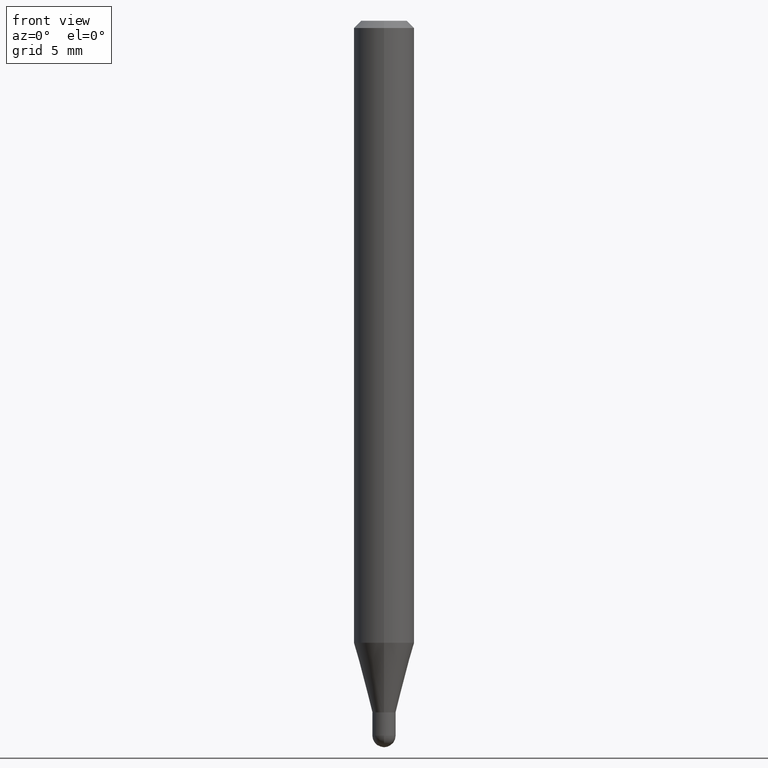
[diagram: clean part render]
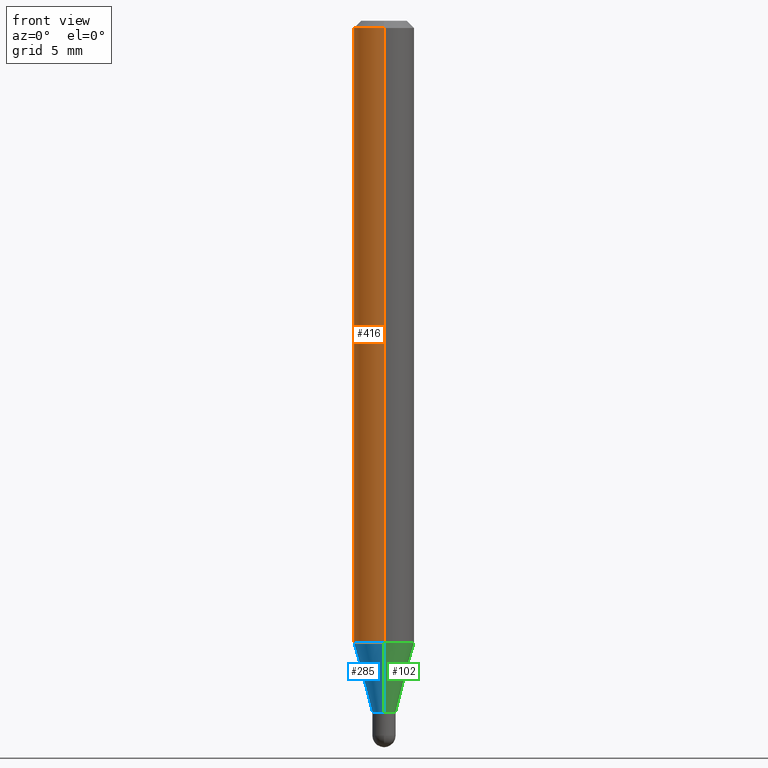
[diagram: same view with three faces highlighted in distinct colors, each labeled with its STEP entity id]
A machine part, front view with three faces highlighted in distinct colors.
Their STEP definitions:

[orange] entity #416 — the highlighted cylindrical surface (edge-blend (fillet) strip) has radius 1.5875 mm, axis along (-0, 0, 1).
#5 = DIRECTION ( 'NONE',  ( -2.445477922640170503E-29, 3.491468283560659998E-15, 1.000000000000000000 ) ) ;
#8 = CARTESIAN_POINT ( 'NONE',  ( -4.364351673553916201E-16, -0.06250000000000000000, 2.182167677225412499E-16 ) ) ;
#15 = VECTOR ( 'NONE', #5, 39.37007874015748143 ) ;
#20 = DIRECTION ( 'NONE',  ( -2.445477922640170503E-29, 3.491468283560659998E-15, 1.000000000000000000 ) ) ;
#33 = ORIENTED_EDGE ( 'NONE', *, *, #86, .F. ) ;
#49 = LINE ( 'NONE', #8, #15 ) ;
#67 = CARTESIAN_POINT ( 'NONE',  ( 4.440892098500625669E-16, 0.06250000000000000000, -2.182167677225412499E-16 ) ) ;
#68 = EDGE_LOOP ( 'NONE', ( #270, #476, #489, #33 ) ) ;
#71 = CYLINDRICAL_SURFACE ( 'NONE', #122, 0.06250000000000000000 ) ;
#86 = EDGE_CURVE ( 'NONE', #265, #317, #318, .T. ) ;
#90 = DIRECTION ( 'NONE',  ( -2.445477922640170783E-29, 3.491468283560660393E-15, 1.000000000000000000 ) ) ;
#98 = AXIS2_PLACEMENT_3D ( 'NONE', #137, #295, #453 ) ;
#108 = LINE ( 'NONE', #67, #384 ) ;
#122 = AXIS2_PLACEMENT_3D ( 'NONE', #387, #90, #288 ) ;
#123 = CARTESIAN_POINT ( 'NONE',  ( -4.364351673553604601E-16, -0.06250000000000449640, -1.284316043908603877 ) ) ;
#137 = CARTESIAN_POINT ( 'NONE',  ( 3.668216883960272272E-31, -5.237202425341013244E-17, -0.01500000000000006710 ) ) ;
#147 = EDGE_CURVE ( 'NONE', #443, #265, #108, .T. ) ;
#175 = CARTESIAN_POINT ( 'NONE',  ( 4.440892098500937762E-16, 0.06249999999999550360, -1.284316043908604321 ) ) ;
#225 = EDGE_CURVE ( 'NONE', #443, #403, #319, .T. ) ;
#263 = DIRECTION ( 'NONE',  ( -2.445477922640170783E-29, 3.491468283560660393E-15, 1.000000000000000000 ) ) ;
#265 = VERTEX_POINT ( 'NONE', #502 ) ;
#270 = ORIENTED_EDGE ( 'NONE', *, *, #147, .F. ) ;
#288 = DIRECTION ( 'NONE',  ( -6.982962677686265922E-15, -1.000000000000000000, 3.491468283560659998E-15 ) ) ;
#295 = DIRECTION ( 'NONE',  ( -2.445477922640170783E-29, 3.491468283560660393E-15, 1.000000000000000000 ) ) ;
#317 = VERTEX_POINT ( 'NONE', #430 ) ;
#318 = CIRCLE ( 'NONE', #98, 0.06250000000000000000 ) ;
#319 = CIRCLE ( 'NONE', #343, 0.06250000000000000000 ) ;
#343 = AXIS2_PLACEMENT_3D ( 'NONE', #382, #263, #423 ) ;
#382 = CARTESIAN_POINT ( 'NONE',  ( 3.140766531071055068E-29, -4.484148733374991041E-15, -1.284316043908604099 ) ) ;
#384 = VECTOR ( 'NONE', #20, 39.37007874015748143 ) ;
#387 = CARTESIAN_POINT ( 'NONE',  ( 0.000000000000000000, 0.000000000000000000, 0.000000000000000000 ) ) ;
#403 = VERTEX_POINT ( 'NONE', #123 ) ;
#416 = ADVANCED_FACE ( 'NONE', ( #427 ), #71, .T. ) ;
#423 = DIRECTION ( 'NONE',  ( -6.982962677686265922E-15, -1.000000000000000000, 4.370956789862821150E-15 ) ) ;
#427 = FACE_OUTER_BOUND ( 'NONE', #68, .T. ) ;
#430 = CARTESIAN_POINT ( 'NONE',  ( -4.364351673553912750E-16, -0.06250000000000005551, -0.01499999999999984852 ) ) ;
#443 = VERTEX_POINT ( 'NONE', #175 ) ;
#453 = DIRECTION ( 'NONE',  ( -6.982962677686265922E-15, -1.000000000000000000, 3.483106191921935554E-15 ) ) ;
#476 = ORIENTED_EDGE ( 'NONE', *, *, #225, .T. ) ;
#489 = ORIENTED_EDGE ( 'NONE', *, *, #496, .T. ) ;
#496 = EDGE_CURVE ( 'NONE', #403, #317, #49, .T. ) ;
#502 = CARTESIAN_POINT ( 'NONE',  ( 4.440892098500941706E-16, 0.06249999999999995143, -0.01500000000000028394 ) ) ;

[blue] entity #285 — the highlighted conical surface has half-angle 15 deg.
#34 = CARTESIAN_POINT ( 'NONE',  ( -1.675911042644368064E-16, -0.02400000000000517691, -1.428000000000000158 ) ) ;
#46 = CARTESIAN_POINT ( 'NONE',  ( 1.705302565824602865E-16, 0.02399999999999520572, -1.428000000000000158 ) ) ;
#48 = VERTEX_POINT ( 'NONE', #252 ) ;
#95 = EDGE_CURVE ( 'NONE', #48, #443, #100, .T. ) ;
#100 = LINE ( 'NONE', #46, #229 ) ;
#123 = CARTESIAN_POINT ( 'NONE',  ( -4.364351673553604601E-16, -0.06250000000000449640, -1.284316043908603877 ) ) ;
#124 = ORIENTED_EDGE ( 'NONE', *, *, #225, .F. ) ;
#138 = VECTOR ( 'NONE', #475, 39.37007874015748143 ) ;
#146 = CONICAL_SURFACE ( 'NONE', #482, 0.02400000000000019132, 0.2617993877991580676 ) ;
#160 = LINE ( 'NONE', #34, #138 ) ;
#175 = CARTESIAN_POINT ( 'NONE',  ( 4.440892098500937762E-16, 0.06249999999999550360, -1.284316043908604321 ) ) ;
#207 = DIRECTION ( 'NONE',  ( 1.839019923739653958E-15, 0.2588190451025325078, 0.9659258262890650926 ) ) ;
#225 = EDGE_CURVE ( 'NONE', #443, #403, #319, .T. ) ;
#229 = VECTOR ( 'NONE', #207, 39.37007874015748143 ) ;
#234 = DIRECTION ( 'NONE',  ( -2.445477922640170783E-29, 3.491468283560660393E-15, 1.000000000000000000 ) ) ;
#252 = CARTESIAN_POINT ( 'NONE',  ( 3.073097332162772285E-16, 0.02399999999999520572, -1.428000000000000158 ) ) ;
#263 = DIRECTION ( 'NONE',  ( -2.445477922640170783E-29, 3.491468283560660393E-15, 1.000000000000000000 ) ) ;
#285 = ADVANCED_FACE ( 'NONE', ( #356 ), #146, .T. ) ;
#312 = DIRECTION ( 'NONE',  ( -6.982962677686265922E-15, -1.000000000000000000, 0.000000000000000000 ) ) ;
#314 = DIRECTION ( 'NONE',  ( -6.982962677686265922E-15, -1.000000000000000000, 0.000000000000000000 ) ) ;
#319 = CIRCLE ( 'NONE', #343, 0.06250000000000000000 ) ;
#320 = CARTESIAN_POINT ( 'NONE',  ( 3.492142473530164178E-29, -4.985816708924623265E-15, -1.428000000000000158 ) ) ;
#323 = EDGE_CURVE ( 'NONE', #48, #481, #445, .T. ) ;
#326 = CARTESIAN_POINT ( 'NONE',  ( -1.675911042644368064E-16, -0.02400000000000517691, -1.428000000000000158 ) ) ;
#337 = EDGE_CURVE ( 'NONE', #481, #403, #160, .T. ) ;
#339 = ORIENTED_EDGE ( 'NONE', *, *, #95, .F. ) ;
#343 = AXIS2_PLACEMENT_3D ( 'NONE', #382, #263, #423 ) ;
#356 = FACE_OUTER_BOUND ( 'NONE', #503, .T. ) ;
#382 = CARTESIAN_POINT ( 'NONE',  ( 3.140766531071055068E-29, -4.484148733374991041E-15, -1.284316043908604099 ) ) ;
#389 = DIRECTION ( 'NONE',  ( -2.445477922640170783E-29, 3.491468283560660393E-15, 1.000000000000000000 ) ) ;
#403 = VERTEX_POINT ( 'NONE', #123 ) ;
#423 = DIRECTION ( 'NONE',  ( -6.982962677686265922E-15, -1.000000000000000000, 4.370956789862821150E-15 ) ) ;
#436 = AXIS2_PLACEMENT_3D ( 'NONE', #506, #389, #314 ) ;
#443 = VERTEX_POINT ( 'NONE', #175 ) ;
#445 = CIRCLE ( 'NONE', #436, 0.02400000000000019132 ) ;
#450 = ORIENTED_EDGE ( 'NONE', *, *, #323, .T. ) ;
#470 = ORIENTED_EDGE ( 'NONE', *, *, #337, .T. ) ;
#475 = DIRECTION ( 'NONE',  ( -1.807323732225382993E-15, -0.2588190451025257355, 0.9659258262890669799 ) ) ;
#481 = VERTEX_POINT ( 'NONE', #326 ) ;
#482 = AXIS2_PLACEMENT_3D ( 'NONE', #320, #234, #312 ) ;
#503 = EDGE_LOOP ( 'NONE', ( #339, #450, #470, #124 ) ) ;
#506 = CARTESIAN_POINT ( 'NONE',  ( 3.492142473530164178E-29, -4.985816708924623265E-15, -1.428000000000000158 ) ) ;

[green] entity #102 — the highlighted conical surface has half-angle 15 deg.
#14 = AXIS2_PLACEMENT_3D ( 'NONE', #172, #183, #302 ) ;
#29 = AXIS2_PLACEMENT_3D ( 'NONE', #258, #414, #55 ) ;
#34 = CARTESIAN_POINT ( 'NONE',  ( -1.675911042644368064E-16, -0.02400000000000517691, -1.428000000000000158 ) ) ;
#46 = CARTESIAN_POINT ( 'NONE',  ( 1.705302565824602865E-16, 0.02399999999999520572, -1.428000000000000158 ) ) ;
#48 = VERTEX_POINT ( 'NONE', #252 ) ;
#55 = DIRECTION ( 'NONE',  ( -6.982962677686265922E-15, -1.000000000000000000, 4.370956789862821150E-15 ) ) ;
#76 = EDGE_CURVE ( 'NONE', #403, #443, #189, .T. ) ;
#79 = AXIS2_PLACEMENT_3D ( 'NONE', #130, #211, #362 ) ;
#91 = CIRCLE ( 'NONE', #79, 0.02400000000000019132 ) ;
#95 = EDGE_CURVE ( 'NONE', #48, #443, #100, .T. ) ;
#100 = LINE ( 'NONE', #46, #229 ) ;
#102 = ADVANCED_FACE ( 'NONE', ( #363 ), #213, .T. ) ;
#123 = CARTESIAN_POINT ( 'NONE',  ( -4.364351673553604601E-16, -0.06250000000000449640, -1.284316043908603877 ) ) ;
#130 = CARTESIAN_POINT ( 'NONE',  ( 3.492142473530164178E-29, -4.985816708924623265E-15, -1.428000000000000158 ) ) ;
#133 = ORIENTED_EDGE ( 'NONE', *, *, #95, .T. ) ;
#138 = VECTOR ( 'NONE', #475, 39.37007874015748143 ) ;
#160 = LINE ( 'NONE', #34, #138 ) ;
#172 = CARTESIAN_POINT ( 'NONE',  ( 3.492142473530164178E-29, -4.985816708924623265E-15, -1.428000000000000158 ) ) ;
#175 = CARTESIAN_POINT ( 'NONE',  ( 4.440892098500937762E-16, 0.06249999999999550360, -1.284316043908604321 ) ) ;
#183 = DIRECTION ( 'NONE',  ( -2.445477922640170783E-29, 3.491468283560660393E-15, 1.000000000000000000 ) ) ;
#189 = CIRCLE ( 'NONE', #29, 0.06250000000000000000 ) ;
#207 = DIRECTION ( 'NONE',  ( 1.839019923739653958E-15, 0.2588190451025325078, 0.9659258262890650926 ) ) ;
#211 = DIRECTION ( 'NONE',  ( -2.445477922640170783E-29, 3.491468283560660393E-15, 1.000000000000000000 ) ) ;
#213 = CONICAL_SURFACE ( 'NONE', #14, 0.02400000000000019132, 0.2617993877991580676 ) ;
#229 = VECTOR ( 'NONE', #207, 39.37007874015748143 ) ;
#243 = ORIENTED_EDGE ( 'NONE', *, *, #76, .F. ) ;
#252 = CARTESIAN_POINT ( 'NONE',  ( 3.073097332162772285E-16, 0.02399999999999520572, -1.428000000000000158 ) ) ;
#258 = CARTESIAN_POINT ( 'NONE',  ( 3.140766531071055068E-29, -4.484148733374991041E-15, -1.284316043908604099 ) ) ;
#302 = DIRECTION ( 'NONE',  ( -6.982962677686265922E-15, -1.000000000000000000, 0.000000000000000000 ) ) ;
#313 = ORIENTED_EDGE ( 'NONE', *, *, #337, .F. ) ;
#326 = CARTESIAN_POINT ( 'NONE',  ( -1.675911042644368064E-16, -0.02400000000000517691, -1.428000000000000158 ) ) ;
#330 = EDGE_LOOP ( 'NONE', ( #466, #133, #243, #313 ) ) ;
#337 = EDGE_CURVE ( 'NONE', #481, #403, #160, .T. ) ;
#362 = DIRECTION ( 'NONE',  ( -6.982962677686265922E-15, -1.000000000000000000, 0.000000000000000000 ) ) ;
#363 = FACE_OUTER_BOUND ( 'NONE', #330, .T. ) ;
#403 = VERTEX_POINT ( 'NONE', #123 ) ;
#414 = DIRECTION ( 'NONE',  ( -2.445477922640170783E-29, 3.491468283560660393E-15, 1.000000000000000000 ) ) ;
#443 = VERTEX_POINT ( 'NONE', #175 ) ;
#466 = ORIENTED_EDGE ( 'NONE', *, *, #488, .T. ) ;
#475 = DIRECTION ( 'NONE',  ( -1.807323732225382993E-15, -0.2588190451025257355, 0.9659258262890669799 ) ) ;
#481 = VERTEX_POINT ( 'NONE', #326 ) ;
#488 = EDGE_CURVE ( 'NONE', #481, #48, #91, .T. ) ;